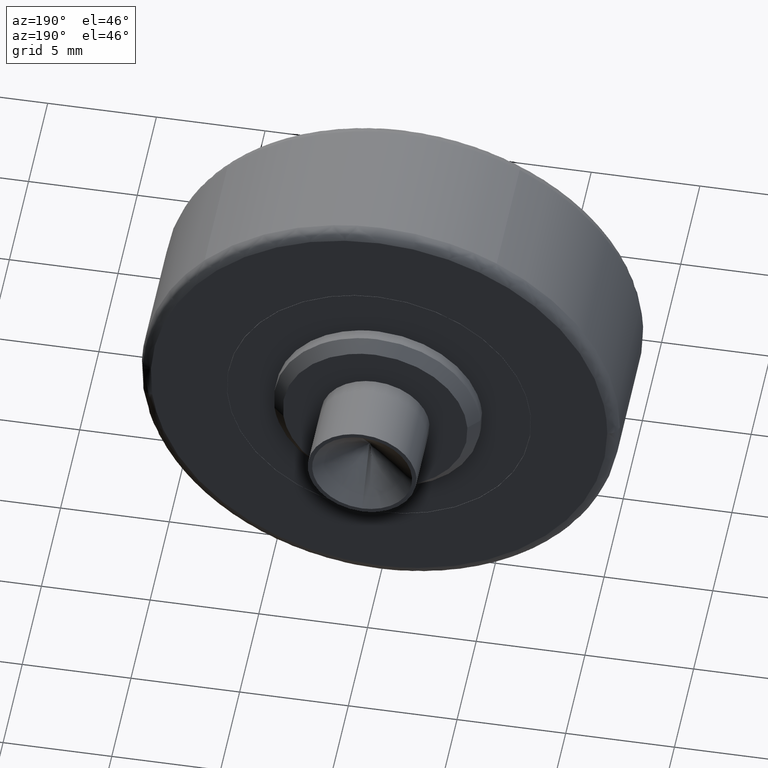
[diagram: clean part render]
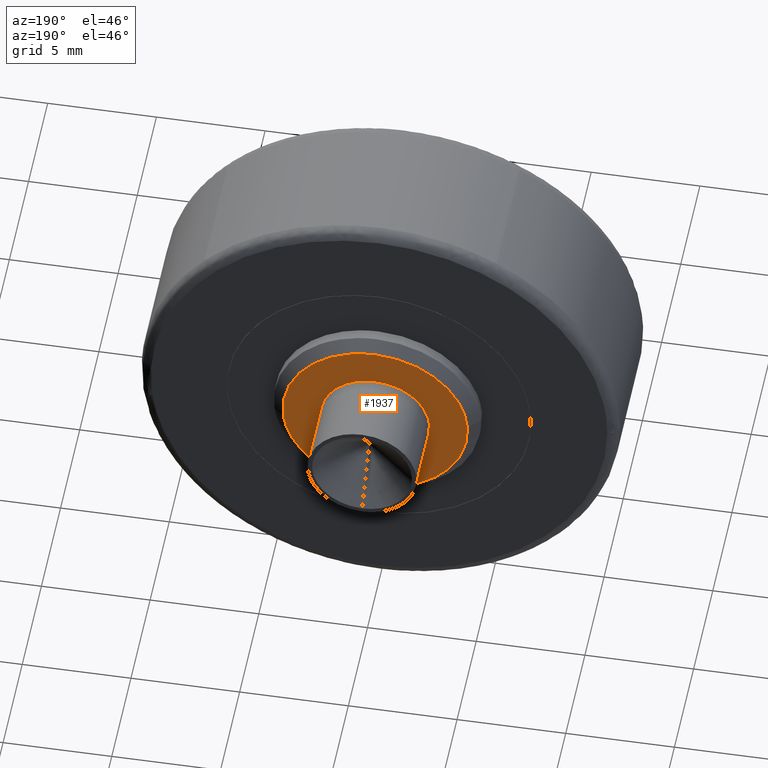
[diagram: same view with one face highlighted and labeled with its STEP entity id]
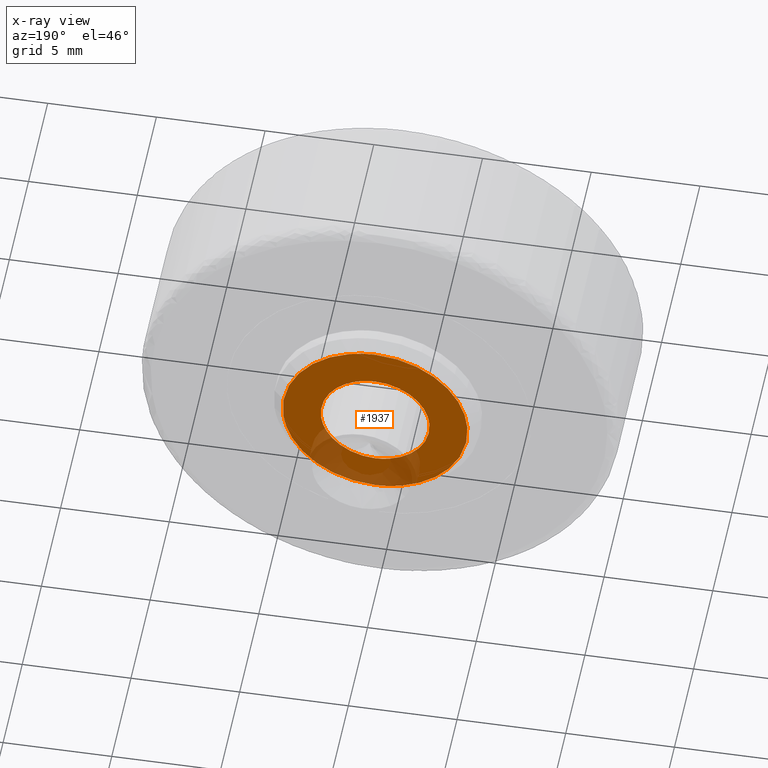
[diagram: x-ray of the same camera — body ghosted, the highlighted face saturated]
A machine part, auxiliary view. The second image highlights one B-rep face of the part: STEP entity #1937.
The next image is the same camera in x-ray: the body ghosted, the highlighted face saturated — about 19% of this face is hidden behind the body in this view.
In plain terms, the highlighted face is a freeform B-spline surface patch.
Its self-contained STEP definition (entity closure, byte-faithful):
#272=CARTESIAN_POINT('',(4.220290487045931,7.999999999994490,-0.501645497334969));
#273=VERTEX_POINT('',#272);
#279=CARTESIAN_POINT('',(0.0,8.0,4.250000000000000));
#280=VERTEX_POINT('',#279);
#281=CARTESIAN_POINT('',(4.220290487045931,7.999999999994490,-0.501645497334969));
#282=CARTESIAN_POINT('',(4.249999999999999,8.0,-0.251702508564168));
#283=CARTESIAN_POINT('',(4.250000000000000,8.0,-1.962843E-016));
#284=CARTESIAN_POINT('',(4.249999999999999,8.0,4.249999999999999));
#285=CARTESIAN_POINT('',(0.0,8.0,4.250000000000000));
#293=(BOUNDED_CURVE()B_SPLINE_CURVE(2,(#281,#282,#283,#284,#285),.UNSPECIFIED.,.F.,.U.)B_SPLINE_CURVE_WITH_KNOTS((3,2,3),(0.229562473512193,0.250000000000000,0.500000000000000),.UNSPECIFIED.)CURVE()GEOMETRIC_REPRESENTATION_ITEM()RATIONAL_B_SPLINE_CURVE((0.956026754181121,0.976055948329604,1.0,0.707106781186548,1.0))REPRESENTATION_ITEM(''));
#294=EDGE_CURVE('',#273,#280,#293,.T.);
#296=CARTESIAN_POINT('',(-4.242072893298040,7.999999999990483,0.259456293095542));
#297=VERTEX_POINT('',#296);
#298=CARTESIAN_POINT('',(0.0,8.0,4.250000000000000));
#299=CARTESIAN_POINT('',(-3.998000784213560,8.0,4.250000000000001));
#300=CARTESIAN_POINT('',(-4.242072893298041,7.999999999990483,0.259456293095542));
#308=(BOUNDED_CURVE()B_SPLINE_CURVE(2,(#298,#299,#300),.UNSPECIFIED.,.F.,.U.)B_SPLINE_CURVE_WITH_KNOTS((3,3),(0.500000000000000,0.739332962236125),.UNSPECIFIED.)CURVE()GEOMETRIC_REPRESENTATION_ITEM()RATIONAL_B_SPLINE_CURVE((1.0,0.719603993290011,0.976072041660679))REPRESENTATION_ITEM(''));
#309=EDGE_CURVE('',#280,#297,#308,.T.);
#342=CARTESIAN_POINT('',(0.0,8.0,-4.250000000000000));
#343=VERTEX_POINT('',#342);
#344=CARTESIAN_POINT('',(-4.242072893298040,7.999999999990483,0.259456293095542));
#345=CARTESIAN_POINT('',(-4.250000000000000,8.0,0.129849244091023));
#346=CARTESIAN_POINT('',(-4.250000000000000,8.0,-1.962843E-016));
#347=CARTESIAN_POINT('',(-4.249999999999999,8.0,-4.249999999999999));
#348=CARTESIAN_POINT('',(0.0,8.0,-4.250000000000000));
#356=(BOUNDED_CURVE()B_SPLINE_CURVE(2,(#344,#345,#346,#347,#348),.UNSPECIFIED.,.F.,.U.)B_SPLINE_CURVE_WITH_KNOTS((3,2,3),(0.739332962236126,0.750000000000000,1.0),.UNSPECIFIED.)CURVE()GEOMETRIC_REPRESENTATION_ITEM()RATIONAL_B_SPLINE_CURVE((0.976072041660680,0.987502787896537,1.0,0.707106781186548,1.0))REPRESENTATION_ITEM(''));
#357=EDGE_CURVE('',#297,#343,#356,.T.);
#359=CARTESIAN_POINT('',(0.0,8.0,-4.250000000000000));
#360=CARTESIAN_POINT('',(3.774741735215680,8.0,-4.249999999999999));
#361=CARTESIAN_POINT('',(4.220290487045931,7.999999999994490,-0.501645497334969));
#369=(BOUNDED_CURVE()B_SPLINE_CURVE(2,(#359,#360,#361),.UNSPECIFIED.,.F.,.U.)B_SPLINE_CURVE_WITH_KNOTS((3,3),(0.0,0.229562473512193),.UNSPECIFIED.)CURVE()GEOMETRIC_REPRESENTATION_ITEM()RATIONAL_B_SPLINE_CURVE((1.0,0.731050832856944,0.956026754181121))REPRESENTATION_ITEM(''));
#370=EDGE_CURVE('',#343,#273,#369,.T.);
#398=CARTESIAN_POINT('',(2.482523815905430,8.0,-0.295085586673325));
#399=VERTEX_POINT('',#398);
#400=CARTESIAN_POINT('',(0.0,8.0,2.500000000000000));
#401=VERTEX_POINT('',#400);
#402=CARTESIAN_POINT('',(2.482523815905430,8.0,-0.295085586673325));
#403=CARTESIAN_POINT('',(2.500000000000000,8.0,-0.148060299161536));
#404=CARTESIAN_POINT('',(2.500000000000000,8.0,-1.962843E-016));
#405=CARTESIAN_POINT('',(2.500000000000000,8.0,2.500000000000000));
#406=CARTESIAN_POINT('',(0.0,8.0,2.500000000000000));
#414=(BOUNDED_CURVE()B_SPLINE_CURVE(2,(#402,#403,#404,#405,#406),.UNSPECIFIED.,.F.,.U.)B_SPLINE_CURVE_WITH_KNOTS((3,2,3),(0.229562473511365,0.250000000000000,0.500000000000000),.UNSPECIFIED.)CURVE()GEOMETRIC_REPRESENTATION_ITEM()RATIONAL_B_SPLINE_CURVE((0.956026754179498,0.976055948328634,1.0,0.707106781186548,1.0))REPRESENTATION_ITEM(''));
#415=EDGE_CURVE('',#399,#401,#414,.T.);
#456=CARTESIAN_POINT('',(-2.495337163820828,7.999999999999971,0.152618605835177));
#457=VERTEX_POINT('',#456);
#463=CARTESIAN_POINT('',(0.0,8.0,2.500000000000000));
#464=CARTESIAN_POINT('',(-2.351767757276769,8.000000000000002,2.500000000000001));
#465=CARTESIAN_POINT('',(-2.495337163820827,7.999999999999971,0.152618605835177));
#473=(BOUNDED_CURVE()B_SPLINE_CURVE(2,(#463,#464,#465),.UNSPECIFIED.,.F.,.U.)B_SPLINE_CURVE_WITH_KNOTS((3,3),(0.500000000000000,0.739333151914246),.UNSPECIFIED.)CURVE()GEOMETRIC_REPRESENTATION_ITEM()RATIONAL_B_SPLINE_CURVE((1.0,0.719603771068271,0.976072448177334))REPRESENTATION_ITEM(''));
#474=EDGE_CURVE('',#401,#457,#473,.T.);
#497=CARTESIAN_POINT('',(0.0,8.0,-2.500000000000000));
#498=VERTEX_POINT('',#497);
#499=CARTESIAN_POINT('',(0.0,8.0,-2.500000000000000));
#500=CARTESIAN_POINT('',(2.220436314821801,8.0,-2.500000000000000));
#501=CARTESIAN_POINT('',(2.482523815905430,8.0,-0.295085586673325));
#509=(BOUNDED_CURVE()B_SPLINE_CURVE(2,(#499,#500,#501),.UNSPECIFIED.,.F.,.U.)B_SPLINE_CURVE_WITH_KNOTS((3,3),(0.0,0.229562473511365),.UNSPECIFIED.)CURVE()GEOMETRIC_REPRESENTATION_ITEM()RATIONAL_B_SPLINE_CURVE((1.0,0.731050832857914,0.956026754179498))REPRESENTATION_ITEM(''));
#510=EDGE_CURVE('',#498,#399,#509,.T.);
#512=CARTESIAN_POINT('',(-2.495337163820827,7.999999999999971,0.152618605835177));
#513=CARTESIAN_POINT('',(-2.500000000000000,8.0,0.076380532900050));
#514=CARTESIAN_POINT('',(-2.500000000000000,8.0,-1.962843E-016));
#515=CARTESIAN_POINT('',(-2.500000000000000,8.0,-2.500000000000000));
#516=CARTESIAN_POINT('',(0.0,8.0,-2.500000000000000));
#524=(BOUNDED_CURVE()B_SPLINE_CURVE(2,(#512,#513,#514,#515,#516),.UNSPECIFIED.,.F.,.U.)B_SPLINE_CURVE_WITH_KNOTS((3,2,3),(0.739333151914246,0.750000000000000,1.0),.UNSPECIFIED.)CURVE()GEOMETRIC_REPRESENTATION_ITEM()RATIONAL_B_SPLINE_CURVE((0.976072448177334,0.987503010118277,1.0,0.707106781186548,1.0))REPRESENTATION_ITEM(''));
#525=EDGE_CURVE('',#457,#498,#524,.T.);
#1920=CARTESIAN_POINT('',(-4.674471941262539,8.0,4.674574983525350));
#1921=CARTESIAN_POINT('',(-4.674471941262539,8.0,-4.674575211513117));
#1922=CARTESIAN_POINT('',(4.674497703880126,8.0,4.674574983525350));
#1923=CARTESIAN_POINT('',(4.674497703880126,8.0,-4.674575211513117));
#1924=B_SPLINE_SURFACE_WITH_KNOTS('',1,1,((#1920,#1922),(#1921,#1923)),.UNSPECIFIED.,.F.,.F.,.U.,(2,2),(2,2),(0.0,9.349150195038467),(0.0,9.348969645142665),.UNSPECIFIED.);
#1925=ORIENTED_EDGE('',*,*,#357,.F.);
#1926=ORIENTED_EDGE('',*,*,#309,.F.);
#1927=ORIENTED_EDGE('',*,*,#294,.F.);
#1928=ORIENTED_EDGE('',*,*,#370,.F.);
#1929=EDGE_LOOP('',(#1925,#1926,#1927,#1928));
#1930=FACE_OUTER_BOUND('',#1929,.T.);
#1931=ORIENTED_EDGE('',*,*,#474,.T.);
#1932=ORIENTED_EDGE('',*,*,#525,.T.);
#1933=ORIENTED_EDGE('',*,*,#510,.T.);
#1934=ORIENTED_EDGE('',*,*,#415,.T.);
#1935=EDGE_LOOP('',(#1931,#1932,#1933,#1934));
#1936=FACE_BOUND('',#1935,.T.);
#1937=ADVANCED_FACE('',(#1930,#1936),#1924,.F.);